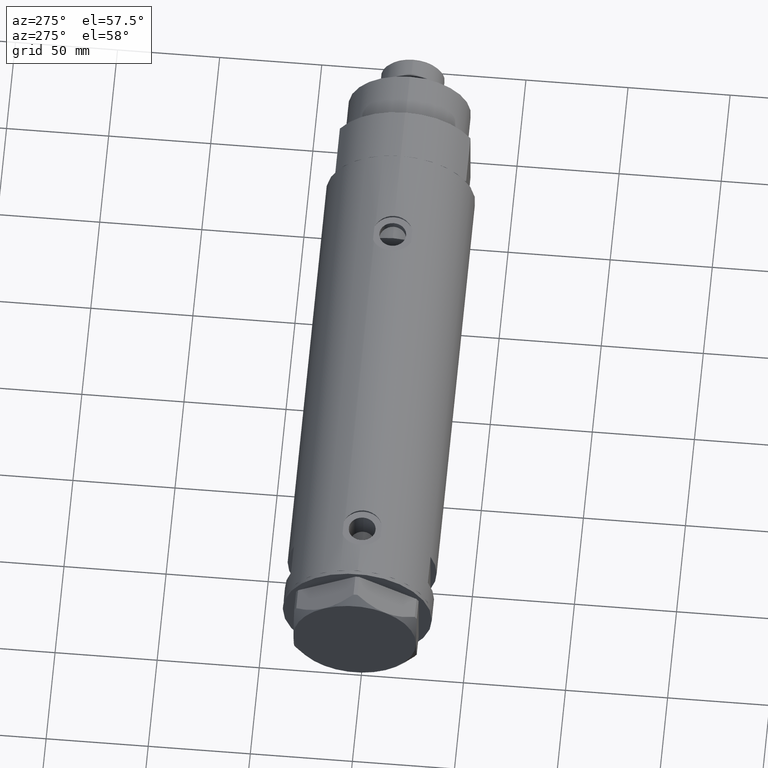
[diagram: clean part render]
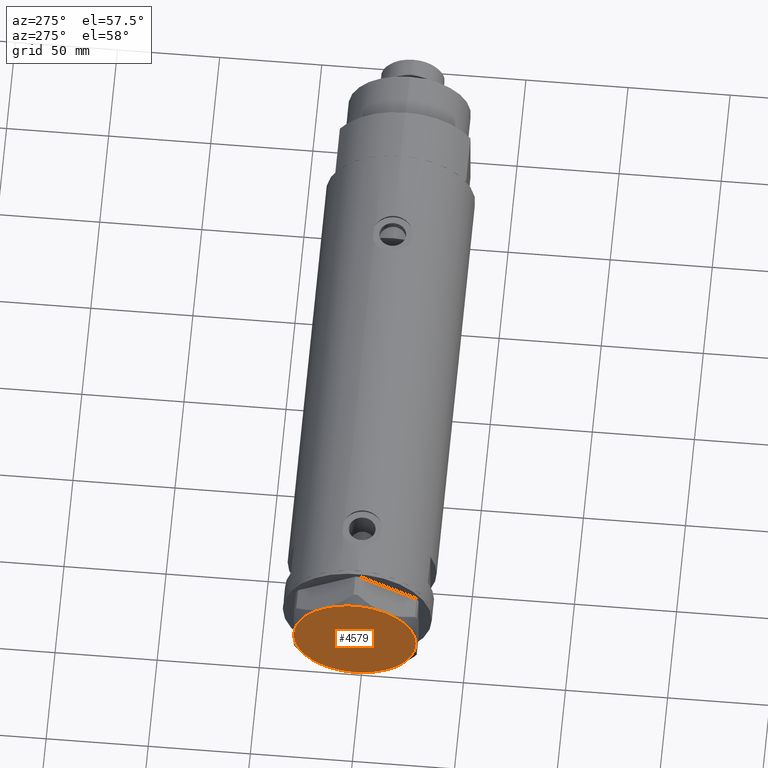
[diagram: same view with one face highlighted and labeled with its STEP entity id]
A machine part, auxiliary view. The second image highlights one B-rep face of the part: STEP entity #4579.
In plain terms, the highlighted planar face has unit normal (-1, -0, 0).
Its self-contained STEP definition (entity closure, byte-faithful):
#73 = PLANE ( 'NONE',  #3427 ) ;
#327 = CARTESIAN_POINT ( 'NONE',  ( -14.99999999999999645, -25.98076211353316367, 14.50000000000000000 ) ) ;
#479 = DIRECTION ( 'NONE',  ( 0.000000000000000000, 0.000000000000000000, 1.000000000000000000 ) ) ;
#641 = EDGE_CURVE ( 'NONE', #2722, #2054, #3222, .T. ) ;
#912 = DIRECTION ( 'NONE',  ( 1.000000000000000000, 0.000000000000000000, -0.000000000000000000 ) ) ;
#1151 = CARTESIAN_POINT ( 'NONE',  ( 0.000000000000000000, 0.000000000000000000, 14.50000000000000000 ) ) ;
#1153 = ORIENTED_EDGE ( 'NONE', *, *, #641, .T. ) ;
#1214 = EDGE_CURVE ( 'NONE', #3111, #1513, #4762, .T. ) ;
#1241 = AXIS2_PLACEMENT_3D ( 'NONE', #3208, #4544, #2251 ) ;
#1316 = AXIS2_PLACEMENT_3D ( 'NONE', #1525, #2890, #4736 ) ;
#1434 = CIRCLE ( 'NONE', #4692, 30.00000000000000000 ) ;
#1513 = VERTEX_POINT ( 'NONE', #3643 ) ;
#1525 = CARTESIAN_POINT ( 'NONE',  ( 0.000000000000000000, 0.000000000000000000, 14.50000000000000000 ) ) ;
#1652 = VERTEX_POINT ( 'NONE', #327 ) ;
#1786 = CARTESIAN_POINT ( 'NONE',  ( 30.00000000000000000, 9.013887592422954582E-15, 14.50000000000000000 ) ) ;
#1932 = DIRECTION ( 'NONE',  ( 0.000000000000000000, 0.000000000000000000, 1.000000000000000000 ) ) ;
#1971 = CARTESIAN_POINT ( 'NONE',  ( -14.99999999999999645, 25.98076211353316367, 14.50000000000000000 ) ) ;
#2054 = VERTEX_POINT ( 'NONE', #4717 ) ;
#2147 = CARTESIAN_POINT ( 'NONE',  ( 0.000000000000000000, 0.000000000000000000, 14.50000000000000000 ) ) ;
#2148 = CARTESIAN_POINT ( 'NONE',  ( 14.99999999999998757, -25.98076211353316722, 14.50000000000000000 ) ) ;
#2184 = CARTESIAN_POINT ( 'NONE',  ( 0.000000000000000000, 0.000000000000000000, 14.50000000000000000 ) ) ;
#2251 = DIRECTION ( 'NONE',  ( 1.000000000000000000, 0.000000000000000000, 0.000000000000000000 ) ) ;
#2336 = EDGE_LOOP ( 'NONE', ( #5607, #1153, #2637, #4428, #3103, #3459 ) ) ;
#2379 = CARTESIAN_POINT ( 'NONE',  ( 0.000000000000000000, 0.000000000000000000, 14.50000000000000000 ) ) ;
#2411 = FACE_OUTER_BOUND ( 'NONE', #2336, .T. ) ;
#2458 = AXIS2_PLACEMENT_3D ( 'NONE', #2698, #479, #4479 ) ;
#2495 = EDGE_CURVE ( 'NONE', #4515, #2722, #4873, .T. ) ;
#2525 = DIRECTION ( 'NONE',  ( 0.000000000000000000, 0.000000000000000000, 1.000000000000000000 ) ) ;
#2637 = ORIENTED_EDGE ( 'NONE', *, *, #3369, .T. ) ;
#2698 = CARTESIAN_POINT ( 'NONE',  ( 0.000000000000000000, 0.000000000000000000, 14.50000000000000000 ) ) ;
#2722 = VERTEX_POINT ( 'NONE', #1786 ) ;
#2890 = DIRECTION ( 'NONE',  ( 0.000000000000000000, 0.000000000000000000, 1.000000000000000000 ) ) ;
#3103 = ORIENTED_EDGE ( 'NONE', *, *, #5829, .T. ) ;
#3111 = VERTEX_POINT ( 'NONE', #1971 ) ;
#3208 = CARTESIAN_POINT ( 'NONE',  ( 0.000000000000000000, 0.000000000000000000, 14.50000000000000000 ) ) ;
#3222 = CIRCLE ( 'NONE', #2458, 30.00000000000000000 ) ;
#3369 = EDGE_CURVE ( 'NONE', #2054, #3111, #1434, .T. ) ;
#3427 = AXIS2_PLACEMENT_3D ( 'NONE', #2379, #1932, #912 ) ;
#3459 = ORIENTED_EDGE ( 'NONE', *, *, #3684, .T. ) ;
#3643 = CARTESIAN_POINT ( 'NONE',  ( -30.00000000000000000, 0.000000000000000000, 14.50000000000000000 ) ) ;
#3684 = EDGE_CURVE ( 'NONE', #1652, #4515, #5541, .T. ) ;
#3981 = DIRECTION ( 'NONE',  ( 0.000000000000000000, 0.000000000000000000, 1.000000000000000000 ) ) ;
#4209 = AXIS2_PLACEMENT_3D ( 'NONE', #1151, #3981, #4466 ) ;
#4374 = DIRECTION ( 'NONE',  ( 1.000000000000000000, 0.000000000000000000, 0.000000000000000000 ) ) ;
#4428 = ORIENTED_EDGE ( 'NONE', *, *, #1214, .T. ) ;
#4466 = DIRECTION ( 'NONE',  ( 1.000000000000000000, 0.000000000000000000, 0.000000000000000000 ) ) ;
#4479 = DIRECTION ( 'NONE',  ( 1.000000000000000000, 0.000000000000000000, 0.000000000000000000 ) ) ;
#4515 = VERTEX_POINT ( 'NONE', #2148 ) ;
#4544 = DIRECTION ( 'NONE',  ( 0.000000000000000000, 0.000000000000000000, 1.000000000000000000 ) ) ;
#4579 = ADVANCED_FACE ( 'NONE', ( #2411 ), #73, .T. ) ;
#4692 = AXIS2_PLACEMENT_3D ( 'NONE', #2184, #5850, #4374 ) ;
#4717 = CARTESIAN_POINT ( 'NONE',  ( 14.99999999999999467, 25.98076211353316367, 14.50000000000000000 ) ) ;
#4736 = DIRECTION ( 'NONE',  ( 1.000000000000000000, 0.000000000000000000, 0.000000000000000000 ) ) ;
#4762 = CIRCLE ( 'NONE', #5423, 30.00000000000000000 ) ;
#4873 = CIRCLE ( 'NONE', #1316, 30.00000000000000000 ) ;
#4891 = CIRCLE ( 'NONE', #1241, 30.00000000000000000 ) ;
#5423 = AXIS2_PLACEMENT_3D ( 'NONE', #2147, #2525, #5803 ) ;
#5541 = CIRCLE ( 'NONE', #4209, 30.00000000000000000 ) ;
#5607 = ORIENTED_EDGE ( 'NONE', *, *, #2495, .T. ) ;
#5803 = DIRECTION ( 'NONE',  ( 1.000000000000000000, 0.000000000000000000, 0.000000000000000000 ) ) ;
#5829 = EDGE_CURVE ( 'NONE', #1513, #1652, #4891, .T. ) ;
#5850 = DIRECTION ( 'NONE',  ( 0.000000000000000000, 0.000000000000000000, 1.000000000000000000 ) ) ;